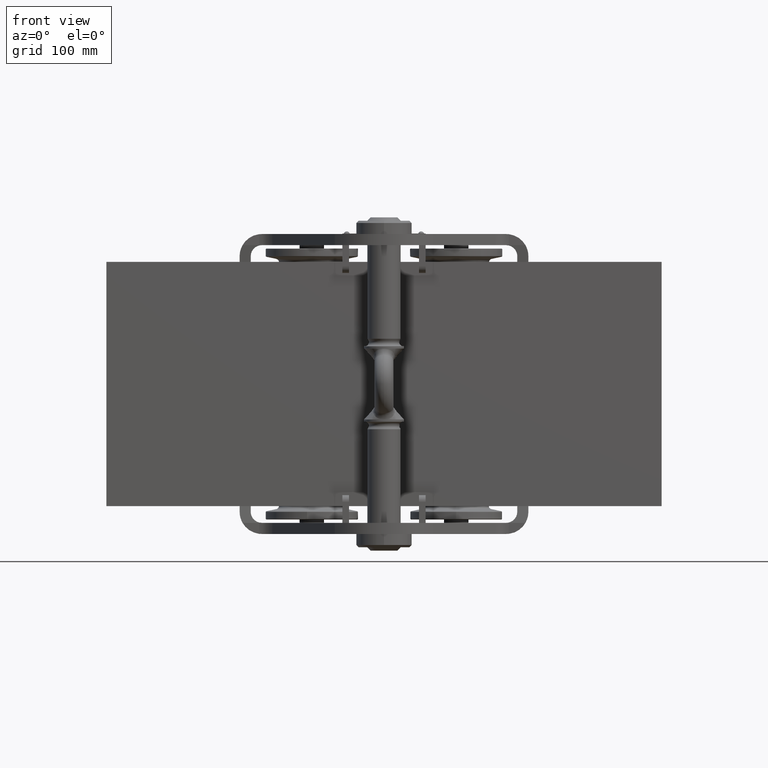
[diagram: clean part render]
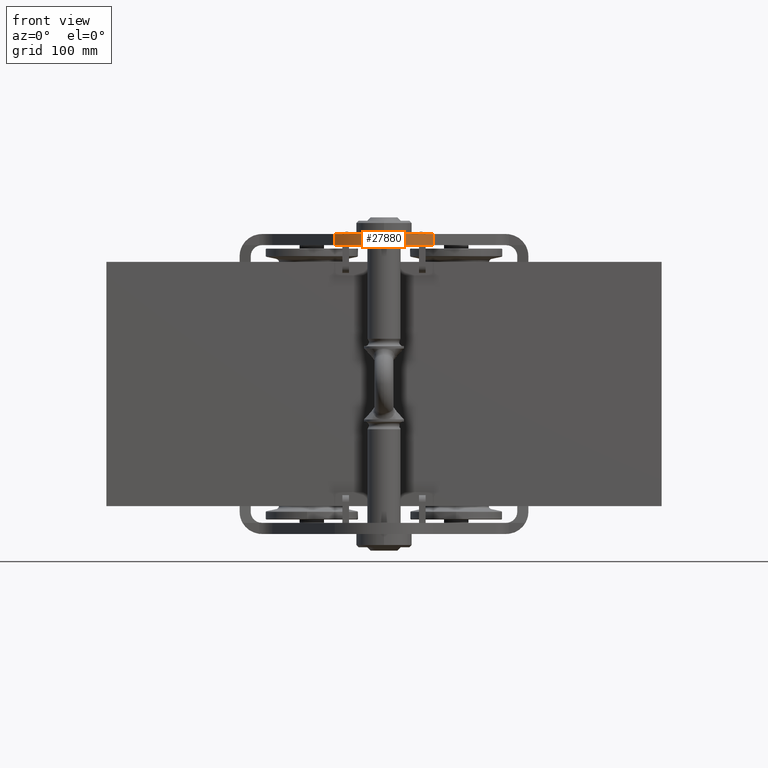
[diagram: same view with one face highlighted and labeled with its STEP entity id]
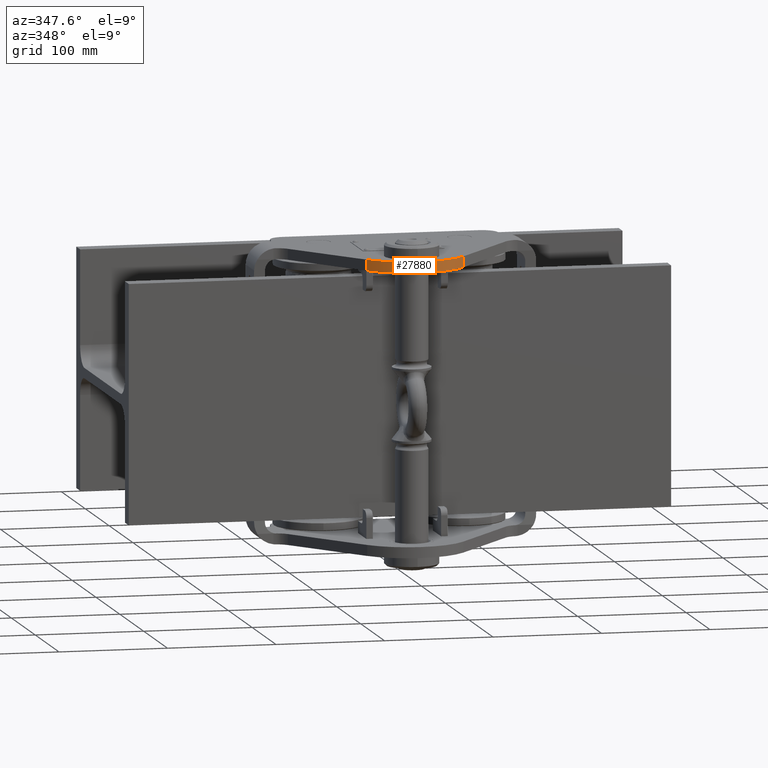
[diagram: same view with one face highlighted and labeled with its STEP entity id]
A machine part, front view. The second image highlights one B-rep face of the part: STEP entity #27880.
A second angle (auxiliary view) of the same face is appended — the face is thin or edge-on in the first view.
In plain terms, the highlighted cylindrical surface (partial cylindrical patch) has radius 55 mm, axis along (-0, 0, 1).
Its self-contained STEP definition (entity closure, byte-faithful):
#1173 = CARTESIAN_POINT ( 'NONE',  ( 44.31912355370715100, -173.5701594627846900, 91.99999999999991500 ) ) ;
#1695 = FACE_OUTER_BOUND ( 'NONE', #1882, .T. ) ;
#1882 = EDGE_LOOP ( 'NONE', ( #22090, #16774, #32460, #28950 ) ) ;
#3215 = VERTEX_POINT ( 'NONE', #28243 ) ;
#3765 = AXIS2_PLACEMENT_3D ( 'NONE', #32949, #33219, #17753 ) ;
#10203 = DIRECTION ( 'NONE',  ( -9.343233249809430500E-017, 1.224606353822377300E-016, 1.000000000000000000 ) ) ;
#13006 = VERTEX_POINT ( 'NONE', #19977 ) ;
#13099 = CYLINDRICAL_SURFACE ( 'NONE', #22345, 55.00000000000000700 ) ;
#13843 = EDGE_CURVE ( 'NONE', #19539, #13006, #28423, .T. ) ;
#14238 = DIRECTION ( 'NONE',  ( 1.665451750560855200E-016, 1.000000000000000000, 0.0000000000000000000 ) ) ;
#15697 = VECTOR ( 'NONE', #23911, 1000.000000000000000 ) ;
#15758 = CIRCLE ( 'NONE', #31931, 55.00000000000000700 ) ;
#15964 = CIRCLE ( 'NONE', #3765, 55.00000000000000700 ) ;
#16774 = ORIENTED_EDGE ( 'NONE', *, *, #25460, .F. ) ;
#17130 = EDGE_CURVE ( 'NONE', #3215, #19539, #15964, .T. ) ;
#17135 = CARTESIAN_POINT ( 'NONE',  ( 1.387778780781445700E-014, -140.9999999999996900, 134.9999999999998900 ) ) ;
#17406 = VECTOR ( 'NONE', #10203, 1000.000000000000000 ) ;
#17684 = CARTESIAN_POINT ( 'NONE',  ( 44.31912355370715100, -173.5701594627846900, 134.9999999999998900 ) ) ;
#17753 = DIRECTION ( 'NONE',  ( -1.000000000000000000, 0.0000000000000000000, 0.0000000000000000000 ) ) ;
#19287 = CARTESIAN_POINT ( 'NONE',  ( -44.31912355370713600, -173.5701594627846900, 124.9999999999999100 ) ) ;
#19539 = VERTEX_POINT ( 'NONE', #19287 ) ;
#19872 = DIRECTION ( 'NONE',  ( 1.665451750560855200E-016, 1.000000000000000000, 0.0000000000000000000 ) ) ;
#19977 = CARTESIAN_POINT ( 'NONE',  ( -44.31912355370713600, -173.5701594627846900, 134.9999999999998900 ) ) ;
#22090 = ORIENTED_EDGE ( 'NONE', *, *, #27357, .T. ) ;
#22345 = AXIS2_PLACEMENT_3D ( 'NONE', #31396, #34847, #19872 ) ;
#23911 = DIRECTION ( 'NONE',  ( -9.343233249809430500E-017, 1.224606353822377300E-016, 1.000000000000000000 ) ) ;
#25460 = EDGE_CURVE ( 'NONE', #13006, #32511, #15758, .T. ) ;
#27357 = EDGE_CURVE ( 'NONE', #3215, #32511, #37326, .T. ) ;
#27880 = ADVANCED_FACE ( 'NONE', ( #1695 ), #13099, .T. ) ;
#28243 = CARTESIAN_POINT ( 'NONE',  ( 44.31912355370715100, -173.5701594627846900, 124.9999999999999100 ) ) ;
#28423 = LINE ( 'NONE', #36706, #15697 ) ;
#28950 = ORIENTED_EDGE ( 'NONE', *, *, #17130, .F. ) ;
#31396 = CARTESIAN_POINT ( 'NONE',  ( 1.387778780781445700E-014, -140.9999999999997200, 91.99999999999990100 ) ) ;
#31931 = AXIS2_PLACEMENT_3D ( 'NONE', #17135, #32316, #14238 ) ;
#32316 = DIRECTION ( 'NONE',  ( -9.343233249809430500E-017, 1.224606353822377300E-016, 1.000000000000000000 ) ) ;
#32460 = ORIENTED_EDGE ( 'NONE', *, *, #13843, .F. ) ;
#32511 = VERTEX_POINT ( 'NONE', #17684 ) ;
#32949 = CARTESIAN_POINT ( 'NONE',  ( 1.387778780781445700E-014, -140.9999999999996900, 124.9999999999998900 ) ) ;
#33219 = DIRECTION ( 'NONE',  ( 1.249727593340362600E-016, -1.224606353822377300E-016, -1.000000000000000000 ) ) ;
#34847 = DIRECTION ( 'NONE',  ( -9.343233249809430500E-017, 1.224606353822377300E-016, 1.000000000000000000 ) ) ;
#36706 = CARTESIAN_POINT ( 'NONE',  ( -44.31912355370713600, -173.5701594627846900, 91.99999999999990100 ) ) ;
#37326 = LINE ( 'NONE', #1173, #17406 ) ;